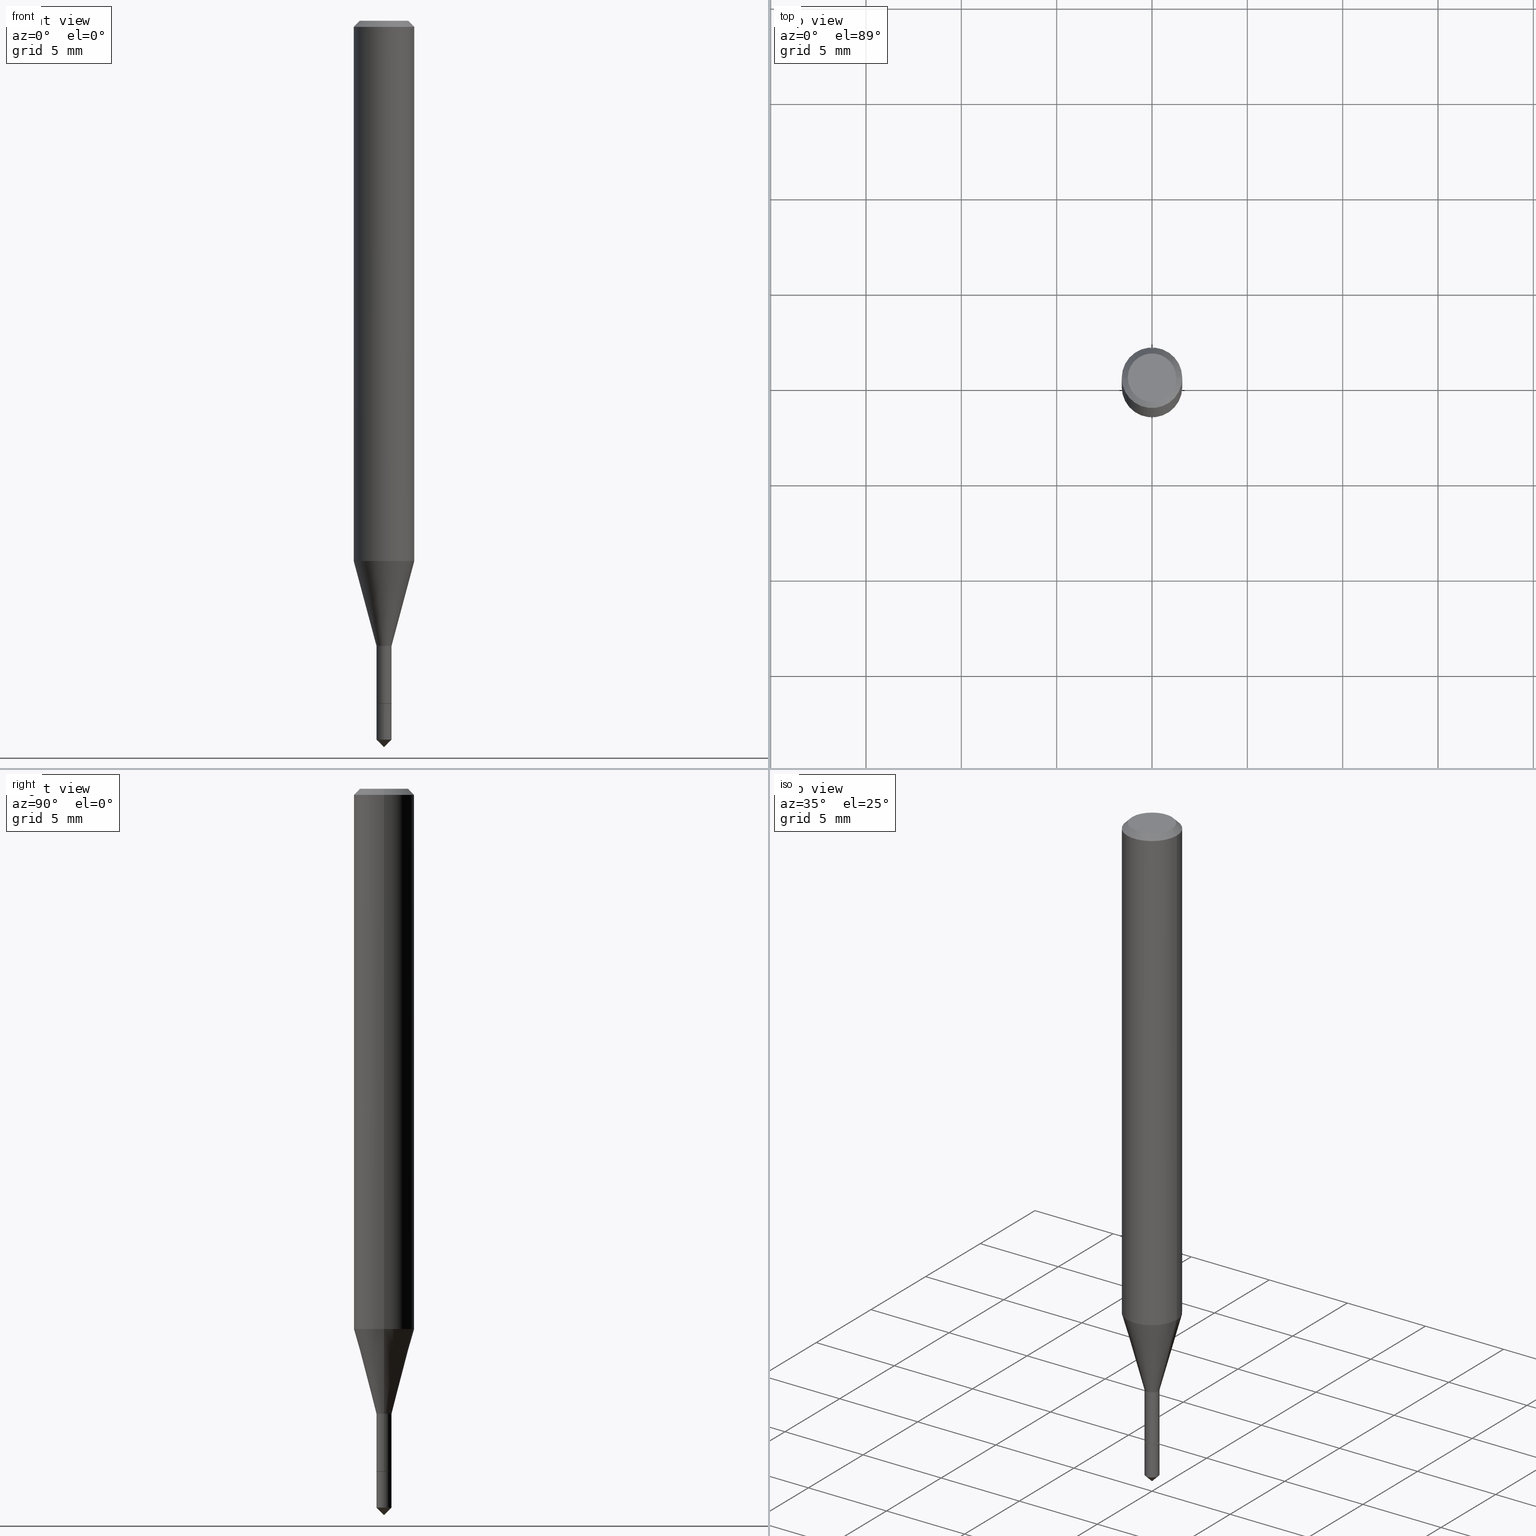
[diagram: canonical four-view strip — front | top / right | iso, engineering-drawing reading convention]
A machine part, canonical four-view strip (front | top / right | iso — engineering-drawing reading convention). The complete STEP part file that produces these views, byte-faithful:
ISO-10303-21;
HEADER;
FILE_DESCRIPTION (( 'STEP AP203' ),
    '1' );
FILE_NAME ('07005.STEP',
    '2024-04-23T19:13:34',
    ( '' ),
    ( '' ),
    'SwSTEP 2.0',
    'SolidWorks 2023',
    '' );
FILE_SCHEMA (( 'CONFIG_CONTROL_DESIGN' ));
ENDSEC;

DATA;
#1 = CARTESIAN_POINT ( 'NONE',  ( 3.056836007731441853E-31, -4.364351673553962300E-17, -0.01250000000000008570 ) ) ;
#2 = ORIENTED_EDGE ( 'NONE', *, *, #175, .T. ) ;
#3 = VERTEX_POINT ( 'NONE', #405 ) ;
#4 = ORIENTED_EDGE ( 'NONE', *, *, #226, .F. ) ;
#5 = DIRECTION ( 'NONE',  ( -2.435672027996482102E-29, 3.505510882807285658E-15, 1.000000000000000000 ) ) ;
#6 = ORIENTED_EDGE ( 'NONE', *, *, #333, .T. ) ;
#7 = CARTESIAN_POINT ( 'NONE',  ( 3.156122041262538513E-29, -4.506105815910965661E-15, -1.290600000000000414 ) ) ;
#8 = CC_DESIGN_DATE_AND_TIME_ASSIGNMENT ( #279, #53, ( #65 ) ) ;
#9 = LINE ( 'NONE', #351, #266 ) ;
#10 =( GEOMETRIC_REPRESENTATION_CONTEXT ( 3 ) GLOBAL_UNCERTAINTY_ASSIGNED_CONTEXT ( ( #263 ) ) GLOBAL_UNIT_ASSIGNED_CONTEXT ( ( #46, #58, #404 ) ) REPRESENTATION_CONTEXT ( 'NONE', 'WORKASPACE' ) );
#11 = DIRECTION ( 'NONE',  ( -0.2588190451025212391, 5.211531920934549464E-15, 0.9659258262890679791 ) ) ;
#12 = EDGE_CURVE ( 'NONE', #455, #324, #420, .T. ) ;
#13 = DIRECTION ( 'NONE',  ( -2.445468806185136597E-29, 3.491481338843145583E-15, 1.000000000000000000 ) ) ;
#14 = ADVANCED_FACE ( 'NONE', ( #286 ), #139, .T. ) ;
#15 = CARTESIAN_POINT ( 'NONE',  ( 0.06250000000000006939, -4.364351673553921624E-16, 3.047610484872463374E-30 ) ) ;
#16 = AXIS2_PLACEMENT_3D ( 'NONE', #174, #284, #397 ) ;
#17 = LOCAL_TIME ( 15, 13, 34.00000000000000000, #245 ) ;
#18 = CLOSED_SHELL ( 'NONE', ( #14, #434, #184, #309, #170 ) ) ;
#19 = DIRECTION ( 'NONE',  ( -0.7071067811865452413, 2.468850131082233000E-15, -0.7071067811865497932 ) ) ;
#20 = EDGE_CURVE ( 'NONE', #109, #227, #363, .T. ) ;
#21 = DATE_AND_TIME ( #362, #367 ) ;
#22 = FACE_OUTER_BOUND ( 'NONE', #179, .T. ) ;
#23 = APPROVAL_STATUS ( 'not_yet_approved' ) ;
#24 = CARTESIAN_POINT ( 'NONE',  ( 0.000000000000000000, 0.000000000000000000, 0.000000000000000000 ) ) ;
#25 = ORIENTED_EDGE ( 'NONE', *, *, #341, .F. ) ;
#26 = CYLINDRICAL_SURFACE ( 'NONE', #395, 0.06250000000000006939 ) ;
#27 = ORIENTED_EDGE ( 'NONE', *, *, #148, .T. ) ;
#28 = ADVANCED_FACE ( 'NONE', ( #22 ), #373, .T. ) ;
#29 = DIRECTION ( 'NONE',  ( -2.445468806185136597E-29, 3.491481338843145583E-15, 1.000000000000000000 ) ) ;
#30 = FACE_OUTER_BOUND ( 'NONE', #117, .T. ) ;
#31 = DIRECTION ( 'NONE',  ( -6.982962677686266711E-15, -1.000000000000000000, 3.552713678800496985E-15 ) ) ;
#32 = CARTESIAN_POINT ( 'NONE',  ( -1.089342177718694794E-16, -0.01560000000000518784, -1.484400000000000386 ) ) ;
#33 = ORIENTED_EDGE ( 'NONE', *, *, #365, .F. ) ;
#34 = CARTESIAN_POINT ( 'NONE',  ( 0.000000000000000000, 0.000000000000000000, 0.000000000000000000 ) ) ;
#35 = EDGE_CURVE ( 'NONE', #227, #158, #320, .T. ) ;
#36 = DIRECTION ( 'NONE',  ( 1.000000000000000000, -6.982962677686290376E-15, 0.000000000000000000 ) ) ;
#37 = ORIENTED_EDGE ( 'NONE', *, *, #35, .T. ) ;
#38 = ORIENTED_EDGE ( 'NONE', *, *, #189, .F. ) ;
#39 = EDGE_LOOP ( 'NONE', ( #215, #37, #417, #294 ) ) ;
#40 = CARTESIAN_POINT ( 'NONE',  ( 3.448111016721043790E-29, -4.922988687768837279E-15, -1.410000000000000586 ) ) ;
#41 = AXIS2_PLACEMENT_3D ( 'NONE', #110, #415, #188 ) ;
#42 = CIRCLE ( 'NONE', #173, 0.01510000000000000231 ) ;
#43 = DIRECTION ( 'NONE',  ( 2.445468806185136597E-29, -3.491481338843145583E-15, -1.000000000000000000 ) ) ;
#44 = CARTESIAN_POINT ( 'NONE',  ( -0.06250000000000015266, -3.450891514374587205E-15, -1.115566817125019927 ) ) ;
#45 = ADVANCED_FACE ( 'NONE', ( #52 ), #26, .T. ) ;
#46 =( CONVERSION_BASED_UNIT ( 'INCH', #275 ) LENGTH_UNIT ( ) NAMED_UNIT ( #218 ) );
#47 = ORIENTED_EDGE ( 'NONE', *, *, #211, .F. ) ;
#48 = PERSON_AND_ORGANIZATION_ROLE ( 'creator' ) ;
#49 = LOCAL_TIME ( 15, 13, 34.00000000000000000, #89 ) ;
#50 = PERSON_AND_ORGANIZATION_ROLE ( 'design_owner' ) ;
#51 = ADVANCED_FACE ( 'NONE', ( #280 ), #208, .T. ) ;
#52 = FACE_OUTER_BOUND ( 'NONE', #269, .T. ) ;
#53 = DATE_TIME_ROLE ( 'classification_date' ) ;
#54 = DIRECTION ( 'NONE',  ( -2.445468806185136597E-29, 3.491481338843145583E-15, 1.000000000000000000 ) ) ;
#55 = APPROVAL_STATUS ( 'not_yet_approved' ) ;
#56 = LINE ( 'NONE', #291, #192 ) ;
#57 = CC_DESIGN_SECURITY_CLASSIFICATION ( #65, ( #411 ) ) ;
#58 =( NAMED_UNIT ( * ) PLANE_ANGLE_UNIT ( ) SI_UNIT ( $, .RADIAN. ) );
#59 = CARTESIAN_POINT ( 'NONE',  ( -0.01559999999999998888, 1.108446667785755500E-16, -7.673538740797647234E-31 ) ) ;
#60 = APPROVAL ( #138, 'UNSPECIFIED' ) ;
#61 = CARTESIAN_POINT ( 'NONE',  ( 3.446888282317950988E-29, -4.921242947099414987E-15, -1.409500000000000419 ) ) ;
#62 = ORIENTED_EDGE ( 'NONE', *, *, #446, .F. ) ;
#63 = DIRECTION ( 'NONE',  ( -2.445468806185136597E-29, 3.491481338843145583E-15, 1.000000000000000000 ) ) ;
#64 = CIRCLE ( 'NONE', #165, 0.01510000000000000231 ) ;
#65 = SECURITY_CLASSIFICATION ( '', '', #180 ) ;
#66 = VERTEX_POINT ( 'NONE', #441 ) ;
#67 = DIRECTION ( 'NONE',  ( 1.000000000000000000, -6.982962677686265922E-15, 4.875957971899673662E-29 ) ) ;
#68 = EDGE_CURVE ( 'NONE', #455, #340, #401, .T. ) ;
#69 = DESIGN_CONTEXT ( 'detailed design', #462, 'design' ) ;
#70 = CARTESIAN_POINT ( 'NONE',  ( 3.448111016721043790E-29, -4.922988687768837279E-15, -1.410000000000000586 ) ) ;
#71 = ORIENTED_EDGE ( 'NONE', *, *, #315, .T. ) ;
#72 = ORIENTED_EDGE ( 'NONE', *, *, #189, .T. ) ;
#73 = DIRECTION ( 'NONE',  ( 1.000000000000000000, -6.982962677686248567E-15, 0.000000000000000000 ) ) ;
#74 = ORIENTED_EDGE ( 'NONE', *, *, #35, .F. ) ;
#75 = VECTOR ( 'NONE', #369, 39.37007874015748854 ) ;
#76 = AXIS2_PLACEMENT_3D ( 'NONE', #80, #13, #235 ) ;
#77 = DIRECTION ( 'NONE',  ( 2.445468806185136597E-29, -3.491481338843145583E-15, -1.000000000000000000 ) ) ;
#78 = ORIENTED_EDGE ( 'NONE', *, *, #88, .F. ) ;
#79 = DIRECTION ( 'NONE',  ( 1.000000000000000000, -6.982962677686286432E-15, 0.000000000000000000 ) ) ;
#80 = CARTESIAN_POINT ( 'NONE',  ( 2.728083852494474973E-29, -3.894980724224650610E-15, -1.115566817125019927 ) ) ;
#81 = AXIS2_PLACEMENT_3D ( 'NONE', #34, #338, #190 ) ;
#82 = APPROVAL_PERSON_ORGANIZATION ( #283, #458, #319 ) ;
#83 = DIRECTION ( 'NONE',  ( -2.445468806185136597E-29, 3.491481338843145583E-15, 1.000000000000000000 ) ) ;
#84 = ORIENTED_EDGE ( 'NONE', *, *, #454, .T. ) ;
#85 = DIRECTION ( 'NONE',  ( -1.000000000000000000, 6.982962677686266711E-15, 0.000000000000000000 ) ) ;
#86 = VERTEX_POINT ( 'NONE', #97 ) ;
#87 = DIRECTION ( 'NONE',  ( -2.445468806185136597E-29, 3.491481338843145583E-15, 1.000000000000000000 ) ) ;
#88 = EDGE_CURVE ( 'NONE', #217, #396, #56, .T. ) ;
#89 = COORDINATED_UNIVERSAL_TIME_OFFSET ( 5, 0, .BEHIND. ) ;
#90 = CONICAL_SURFACE ( 'NONE', #119, 0.01510000000000000231, 0.7853981633969937537 ) ;
#91 = PLANE ( 'NONE',  #328 ) ;
#92 = AXIS2_PLACEMENT_3D ( 'NONE', #7, #83, #385 ) ;
#93 = DIRECTION ( 'NONE',  ( -1.000000000000000000, 6.982962677686265922E-15, -4.876176775795935793E-29 ) ) ;
#94 = PERSON_AND_ORGANIZATION ( #334, #305 ) ;
#95 = ADVANCED_FACE ( 'NONE', ( #183 ), #91, .F. ) ;
#96 = MANIFOLD_SOLID_BREP ( 'Body-Move/Copy2[1]', #18 ) ;
#97 = CARTESIAN_POINT ( 'NONE',  ( -1.089342177718712543E-16, -0.01560000000000492243, -1.410000000000000586 ) ) ;
#98 = PRODUCT ( '07005', '07005', '', ( #172 ) ) ;
#99 = EDGE_CURVE ( 'NONE', #468, #455, #476, .T. ) ;
#100 = CARTESIAN_POINT ( 'NONE',  ( 3.681377211915869878E-29, -5.218703010232054902E-15, -1.500000000000000444 ) ) ;
#101 = ORIENTED_EDGE ( 'NONE', *, *, #321, .F. ) ;
#102 = CIRCLE ( 'NONE', #41, 0.06250000000000000000 ) ;
#103 = EDGE_CURVE ( 'NONE', #352, #463, #200, .T. ) ;
#104 = CLOSED_SHELL ( 'NONE', ( #357, #141, #205, #407, #51, #161, #28, #45, #326, #114, #95, #156 ) ) ;
#105 = PERSON_AND_ORGANIZATION ( #334, #305 ) ;
#106 = CARTESIAN_POINT ( 'NONE',  ( 0.01559999999999998367, -4.615040033682871428E-15, -1.290600000000000414 ) ) ;
#107 = ORIENTED_EDGE ( 'NONE', *, *, #252, .T. ) ;
#108 = DIRECTION ( 'NONE',  ( -2.445468806185136597E-29, 3.491481338843145583E-15, 1.000000000000000000 ) ) ;
#109 = VERTEX_POINT ( 'NONE', #249 ) ;
#110 = CARTESIAN_POINT ( 'NONE',  ( 3.056836007731441853E-31, -4.364351673553962300E-17, -0.01250000000000008570 ) ) ;
#111 = CIRCLE ( 'NONE', #349, 0.01559999999999999928 ) ;
#112 = CARTESIAN_POINT ( 'NONE',  ( 0.01559999999999998888, -1.089342177719056807E-16, 7.606835770241653944E-31 ) ) ;
#113 = DIRECTION ( 'NONE',  ( -2.435672027996482102E-29, 3.505510882807285264E-15, 1.000000000000000000 ) ) ;
#114 = ADVANCED_FACE ( 'NONE', ( #219 ), #327, .F. ) ;
#115 = ORIENTED_EDGE ( 'NONE', *, *, #132, .F. ) ;
#116 = CARTESIAN_POINT ( 'NONE',  ( 0.000000000000000000, 0.000000000000000000, 0.000000000000000000 ) ) ;
#117 = EDGE_LOOP ( 'NONE', ( #307, #107 ) ) ;
#118 = EDGE_CURVE ( 'NONE', #432, #463, #472, .T. ) ;
#119 = AXIS2_PLACEMENT_3D ( 'NONE', #224, #297, #73 ) ;
#120 = EDGE_LOOP ( 'NONE', ( #489, #389, #124, #4 ) ) ;
#121 = CC_DESIGN_APPROVAL ( #292, ( #411 ) ) ;
#122 = FACE_OUTER_BOUND ( 'NONE', #195, .T. ) ;
#123 = CARTESIAN_POINT ( 'NONE',  ( 3.653508041994724135E-29, -5.258266324210929277E-15, -1.500000000000000444 ) ) ;
#124 = ORIENTED_EDGE ( 'NONE', *, *, #416, .F. ) ;
#125 = EDGE_LOOP ( 'NONE', ( #331, #448, #47 ) ) ;
#126 = EDGE_CURVE ( 'NONE', #109, #336, #64, .T. ) ;
#127 = DIRECTION ( 'NONE',  ( -2.445468806185136597E-29, 3.491481338843145583E-15, 1.000000000000000000 ) ) ;
#128 = AXIS2_PLACEMENT_3D ( 'NONE', #461, #43, #85 ) ;
#129 = DIRECTION ( 'NONE',  ( 1.000000000000000000, -6.982962677686248567E-15, 0.000000000000000000 ) ) ;
#130 = ORIENTED_EDGE ( 'NONE', *, *, #454, .F. ) ;
#131 = LINE ( 'NONE', #231, #450 ) ;
#132 = EDGE_CURVE ( 'NONE', #178, #227, #213, .T. ) ;
#133 = CALENDAR_DATE ( 2024, 23, 4 ) ;
#134 = CARTESIAN_POINT ( 'NONE',  ( 0.000000000000000000, 0.000000000000000000, 0.000000000000000000 ) ) ;
#135 = COORDINATED_UNIVERSAL_TIME_OFFSET ( 5, 0, .BEHIND. ) ;
#136 = AXIS2_PLACEMENT_3D ( 'NONE', #449, #228, #31 ) ;
#137 = DIRECTION ( 'NONE',  ( 0.2588190451025212391, 1.565188264969622362E-15, 0.9659258262890679791 ) ) ;
#138 = APPROVAL_STATUS ( 'not_yet_approved' ) ;
#139 = CYLINDRICAL_SURFACE ( 'NONE', #409, 0.01559999999999999928 ) ;
#140 = APPLICATION_PROTOCOL_DEFINITION ( 'international standard', 'config_control_design', 1994, #290 ) ;
#141 = ADVANCED_FACE ( 'NONE', ( #264 ), #281, .T. ) ;
#142 = CARTESIAN_POINT ( 'NONE',  ( 3.629325015603981193E-29, -5.183798697449698462E-15, -1.484400000000000386 ) ) ;
#143 = PRODUCT_DEFINITION_SHAPE ( 'NONE', 'NONE',  #237 ) ;
#144 = APPLICATION_PROTOCOL_DEFINITION ( 'international standard', 'config_control_design', 1994, #462 ) ;
#145 = DIRECTION ( 'NONE',  ( 1.000000000000000000, -6.982962677686266711E-15, 4.876176775795935793E-29 ) ) ;
#146 = CIRCLE ( 'NONE', #443, 0.01559999999999999928 ) ;
#147 = CARTESIAN_POINT ( 'NONE',  ( -0.04999999999999999584, 3.709698922520826725E-16, -1.592040838894077649E-18 ) ) ;
#148 = EDGE_CURVE ( 'NONE', #66, #396, #222, .T. ) ;
#149 = DIRECTION ( 'NONE',  ( 1.000000000000000000, -6.982962677686266711E-15, 0.000000000000000000 ) ) ;
#150 = CARTESIAN_POINT ( 'NONE',  ( -1.089342177718712543E-16, -0.01560000000000492243, -1.410000000000000586 ) ) ;
#151 = VECTOR ( 'NONE', #5, 39.37007874015748143 ) ;
#152 = CC_DESIGN_APPROVAL ( #458, ( #65 ) ) ;
#153 = CARTESIAN_POINT ( 'NONE',  ( -0.01559999999999999235, -4.602829714726614675E-15, -1.409500000000000419 ) ) ;
#154 = EDGE_LOOP ( 'NONE', ( #364, #271, #477, #25 ) ) ;
#155 = CYLINDRICAL_SURFACE ( 'NONE', #81, 0.01559999999999998888 ) ;
#156 = ADVANCED_FACE ( 'NONE', ( #225 ), #90, .T. ) ;
#157 = DIRECTION ( 'NONE',  ( -2.435672027996482102E-29, 3.505510882807285264E-15, 1.000000000000000000 ) ) ;
#158 = VERTEX_POINT ( 'NONE', #293 ) ;
#159 = FACE_OUTER_BOUND ( 'NONE', #276, .T. ) ;
#160 = ORIENTED_EDGE ( 'NONE', *, *, #88, .T. ) ;
#161 = ADVANCED_FACE ( 'NONE', ( #262 ), #155, .T. ) ;
#162 = DIRECTION ( 'NONE',  ( -2.445468806185136597E-29, 3.491481338843145583E-15, 1.000000000000000000 ) ) ;
#163 = EDGE_LOOP ( 'NONE', ( #414, #427, #347, #325 ) ) ;
#164 =( LENGTH_UNIT ( ) NAMED_UNIT ( * ) SI_UNIT ( $, .METRE. ) );
#165 = AXIS2_PLACEMENT_3D ( 'NONE', #251, #436, #399 ) ;
#166 = VECTOR ( 'NONE', #459, 39.37007874015748854 ) ;
#167 = DIRECTION ( 'NONE',  ( -6.982962677686265922E-15, -1.000000000000000000, 0.000000000000000000 ) ) ;
#168 = PERSON_AND_ORGANIZATION_ROLE ( 'creator' ) ;
#169 = CARTESIAN_POINT ( 'NONE',  ( -1.436494430713738511E-28, -3.043229776768017851E-14, -1.410000000000000586 ) ) ;
#170 = ADVANCED_FACE ( 'NONE', ( #30 ), #377, .F. ) ;
#171 = AXIS2_PLACEMENT_3D ( 'NONE', #70, #113, #412 ) ;
#172 = MECHANICAL_CONTEXT ( 'NONE', #290, 'mechanical' ) ;
#173 = AXIS2_PLACEMENT_3D ( 'NONE', #308, #127, #425 ) ;
#174 = CARTESIAN_POINT ( 'NONE',  ( 3.156122041262538513E-29, -4.506105815910965661E-15, -1.290600000000000414 ) ) ;
#175 = EDGE_CURVE ( 'NONE', #158, #432, #473, .T. ) ;
#176 = SHAPE_DEFINITION_REPRESENTATION ( #143, #232 ) ;
#177 = DIRECTION ( 'NONE',  ( -2.435672027996482102E-29, 3.505510882807285264E-15, 1.000000000000000000 ) ) ;
#178 = VERTEX_POINT ( 'NONE', #419 ) ;
#179 = EDGE_LOOP ( 'NONE', ( #410, #2, #197, #253 ) ) ;
#180 = SECURITY_CLASSIFICATION_LEVEL ( 'unclassified' ) ;
#181 = CARTESIAN_POINT ( 'NONE',  ( 2.728083852494474973E-29, -3.894980724224650610E-15, -1.115566817125019927 ) ) ;
#182 = EDGE_LOOP ( 'NONE', ( #33, #216 ) ) ;
#183 = FACE_OUTER_BOUND ( 'NONE', #182, .T. ) ;
#184 = ADVANCED_FACE ( 'NONE', ( #295 ), #488, .T. ) ;
#185 = AXIS2_PLACEMENT_3D ( 'NONE', #447, #487, #36 ) ;
#186 = EDGE_LOOP ( 'NONE', ( #84, #380 ) ) ;
#187 = DIRECTION ( 'NONE',  ( -6.982962677686265922E-15, -1.000000000000000000, 0.000000000000000000 ) ) ;
#188 = DIRECTION ( 'NONE',  ( 1.000000000000000000, -6.982962677686266711E-15, 0.000000000000000000 ) ) ;
#189 = EDGE_CURVE ( 'NONE', #396, #66, #102, .T. ) ;
#190 = DIRECTION ( 'NONE',  ( 1.000000000000000000, -6.982962677686266711E-15, 4.876176775795935232E-29 ) ) ;
#191 = AXIS2_PLACEMENT_3D ( 'NONE', #142, #177, #406 ) ;
#192 = VECTOR ( 'NONE', #19, 39.37007874015748143 ) ;
#193 = AXIS2_PLACEMENT_3D ( 'NONE', #457, #268, #79 ) ;
#194 = ORIENTED_EDGE ( 'NONE', *, *, #383, .T. ) ;
#195 = EDGE_LOOP ( 'NONE', ( #300, #130, #160, #72 ) ) ;
#196 = CARTESIAN_POINT ( 'NONE',  ( 3.893286209682126177E-47, -5.558580879666067980E-33, -1.592040838891559689E-18 ) ) ;
#197 = ORIENTED_EDGE ( 'NONE', *, *, #118, .T. ) ;
#198 = CARTESIAN_POINT ( 'NONE',  ( 3.448111016721044350E-29, -4.922988687768838068E-15, -1.410000000000000808 ) ) ;
#199 = DIRECTION ( 'NONE',  ( -2.435672027996482102E-29, 3.505510882807285264E-15, 1.000000000000000000 ) ) ;
#200 = CIRCLE ( 'NONE', #418, 0.06250000000000013878 ) ;
#201 = CARTESIAN_POINT ( 'NONE',  ( 3.156122041262538513E-29, -4.506105815910965661E-15, -1.290600000000000414 ) ) ;
#202 = DIRECTION ( 'NONE',  ( 1.000000000000000000, -6.982962677686290376E-15, 0.000000000000000000 ) ) ;
#203 = CARTESIAN_POINT ( 'NONE',  ( 3.893286209682126177E-47, -5.558580879666067980E-33, -1.592040838891559689E-18 ) ) ;
#204 = ORIENTED_EDGE ( 'NONE', *, *, #438, .T. ) ;
#205 = ADVANCED_FACE ( 'NONE', ( #256 ), #332, .T. ) ;
#206 = PERSON_AND_ORGANIZATION ( #334, #305 ) ;
#207 = APPROVAL_DATE_TIME ( #469, #60 ) ;
#208 = CYLINDRICAL_SURFACE ( 'NONE', #311, 0.01559999999999998888 ) ;
#209 = COORDINATED_UNIVERSAL_TIME_OFFSET ( 5, 0, .BEHIND. ) ;
#210 = DIRECTION ( 'NONE',  ( -2.445468806185136877E-29, 3.491481338843145188E-15, 1.000000000000000000 ) ) ;
#211 = EDGE_CURVE ( 'NONE', #324, #455, #146, .T. ) ;
#212 = EDGE_LOOP ( 'NONE', ( #261, #204, #361 ) ) ;
#213 = CIRCLE ( 'NONE', #433, 0.01559999999999999235 ) ;
#214 = CALENDAR_DATE ( 2024, 23, 4 ) ;
#215 = ORIENTED_EDGE ( 'NONE', *, *, #132, .T. ) ;
#216 = ORIENTED_EDGE ( 'NONE', *, *, #126, .F. ) ;
#217 = VERTEX_POINT ( 'NONE', #147 ) ;
#218 = DIMENSIONAL_EXPONENTS ( 1.000000000000000000, 0.000000000000000000, 0.000000000000000000, 0.000000000000000000, 0.000000000000000000, 0.000000000000000000, 0.000000000000000000 ) ;
#219 = FACE_OUTER_BOUND ( 'NONE', #186, .T. ) ;
#220 = DIRECTION ( 'NONE',  ( 1.000000000000000000, -6.982962677686265922E-15, 4.876176775795935793E-29 ) ) ;
#221 = CARTESIAN_POINT ( 'NONE',  ( 3.448111016721043790E-29, -4.922988687768837279E-15, -1.410000000000000586 ) ) ;
#222 = CIRCLE ( 'NONE', #381, 0.06250000000000000000 ) ;
#223 = AXIS2_PLACEMENT_3D ( 'NONE', #312, #157, #428 ) ;
#224 = CARTESIAN_POINT ( 'NONE',  ( 3.448111016721044350E-29, -4.922988687768838068E-15, -1.410000000000000808 ) ) ;
#225 = FACE_OUTER_BOUND ( 'NONE', #154, .T. ) ;
#226 = EDGE_CURVE ( 'NONE', #324, #86, #254, .T. ) ;
#227 = VERTEX_POINT ( 'NONE', #153 ) ;
#228 = DIRECTION ( 'NONE',  ( -2.435672027996482102E-29, 3.505510882807285264E-15, 1.000000000000000000 ) ) ;
#229 = CIRCLE ( 'NONE', #337, 0.04999999999999999584 ) ;
#230 = CARTESIAN_POINT ( 'NONE',  ( 3.448111016721043790E-29, -4.922988687768837279E-15, -1.410000000000000586 ) ) ;
#231 = CARTESIAN_POINT ( 'NONE',  ( 0.06250000000000000000, -4.724246415962603826E-16, -0.01250000000000008570 ) ) ;
#232 = ADVANCED_BREP_SHAPE_REPRESENTATION ( '07005', ( #96, #426, #298 ), #10 ) ;
#233 = AXIS2_PLACEMENT_3D ( 'NONE', #221, #375, #187 ) ;
#234 = AXIS2_PLACEMENT_3D ( 'NONE', #201, #270, #202 ) ;
#235 = DIRECTION ( 'NONE',  ( 1.000000000000000000, -6.982962677686270655E-15, 0.000000000000000000 ) ) ;
#236 = DIRECTION ( 'NONE',  ( 1.000000000000000000, -6.982962677686265922E-15, 4.875957971899673662E-29 ) ) ;
#237 = PRODUCT_DEFINITION ( 'UNKNOWN', '', #411, #69 ) ;
#238 = CARTESIAN_POINT ( 'NONE',  ( 0.06250000000000015266, -4.331415891580043857E-15, -1.115566817125019927 ) ) ;
#239 = AXIS2_PLACEMENT_3D ( 'NONE', #116, #108, #330 ) ;
#240 = CIRCLE ( 'NONE', #76, 0.06250000000000013878 ) ;
#241 = PERSON_AND_ORGANIZATION ( #334, #305 ) ;
#242 = CARTESIAN_POINT ( 'NONE',  ( 3.448111016721043790E-29, -4.922988687768837279E-15, -1.410000000000000586 ) ) ;
#243 = PERSON_AND_ORGANIZATION ( #334, #305 ) ;
#244 = CARTESIAN_POINT ( 'NONE',  ( 1.108446667786100873E-16, 0.01559999999999507440, -1.410000000000000586 ) ) ;
#245 = COORDINATED_UNIVERSAL_TIME_OFFSET ( 5, 0, .BEHIND. ) ;
#246 = DIRECTION ( 'NONE',  ( -2.435672027996482102E-29, 3.505510882807285264E-15, 1.000000000000000000 ) ) ;
#247 = VECTOR ( 'NONE', #137, 39.37007874015748854 ) ;
#248 = APPROVAL_PERSON_ORGANIZATION ( #241, #60, #437 ) ;
#249 = CARTESIAN_POINT ( 'NONE',  ( -0.01510000000000000231, -4.813047507494950934E-15, -1.410000000000000808 ) ) ;
#250 = APPROVAL_DATE_TIME ( #289, #292 ) ;
#251 = CARTESIAN_POINT ( 'NONE',  ( 3.448111016721044350E-29, -4.922988687768838068E-15, -1.410000000000000808 ) ) ;
#252 = EDGE_CURVE ( 'NONE', #340, #86, #317, .T. ) ;
#253 = ORIENTED_EDGE ( 'NONE', *, *, #103, .F. ) ;
#254 = LINE ( 'NONE', #150, #151 ) ;
#255 = ORIENTED_EDGE ( 'NONE', *, *, #103, .T. ) ;
#256 = FACE_OUTER_BOUND ( 'NONE', #163, .T. ) ;
#257 = LOCAL_TIME ( 15, 13, 34.00000000000000000, #135 ) ;
#258 = ORIENTED_EDGE ( 'NONE', *, *, #365, .T. ) ;
#259 = DIRECTION ( 'NONE',  ( -2.445468806185136877E-29, 3.491481338843145188E-15, 1.000000000000000000 ) ) ;
#260 = PRODUCT_RELATED_PRODUCT_CATEGORY ( 'detail', '', ( #98 ) ) ;
#261 = ORIENTED_EDGE ( 'NONE', *, *, #99, .F. ) ;
#262 = FACE_OUTER_BOUND ( 'NONE', #378, .T. ) ;
#263 = UNCERTAINTY_MEASURE_WITH_UNIT (LENGTH_MEASURE( 1.000000000000000082E-05 ), #46, 'distance_accuracy_value', 'NONE');
#264 = FACE_OUTER_BOUND ( 'NONE', #343, .T. ) ;
#265 = AXIS2_PLACEMENT_3D ( 'NONE', #486, #77, #453 ) ;
#266 = VECTOR ( 'NONE', #303, 39.37007874015748143 ) ;
#267 = EDGE_CURVE ( 'NONE', #3, #217, #229, .T. ) ;
#268 = DIRECTION ( 'NONE',  ( -2.445468806185136597E-29, 3.491481338843145583E-15, 1.000000000000000000 ) ) ;
#269 = EDGE_LOOP ( 'NONE', ( #101, #255, #194, #38 ) ) ;
#270 = DIRECTION ( 'NONE',  ( -2.445468806185136597E-29, 3.491481338843145583E-15, 1.000000000000000000 ) ) ;
#271 = ORIENTED_EDGE ( 'NONE', *, *, #126, .T. ) ;
#272 = DIRECTION ( 'NONE',  ( 0.7071067811865452413, -7.319954787623248157E-15, -0.7071067811865497932 ) ) ;
#273 = VECTOR ( 'NONE', #379, 39.37007874015748143 ) ;
#274 = CONICAL_SURFACE ( 'NONE', #223, 39.37007874015752407, 0.7853981633974488341 ) ;
#275 = LENGTH_MEASURE_WITH_UNIT ( LENGTH_MEASURE( 0.02539999999999999897 ), #164 );
#276 = EDGE_LOOP ( 'NONE', ( #393, #313, #391, #282 ) ) ;
#277 = DIRECTION ( 'NONE',  ( -2.445468806185136877E-29, 3.491481338843145188E-15, 1.000000000000000000 ) ) ;
#278 = ORIENTED_EDGE ( 'NONE', *, *, #267, .F. ) ;
#279 = DATE_AND_TIME ( #133, #257 ) ;
#280 = FACE_OUTER_BOUND ( 'NONE', #39, .T. ) ;
#281 = CONICAL_SURFACE ( 'NONE', #265, 0.06250000000000000000, 0.7853981633974450594 ) ;
#282 = ORIENTED_EDGE ( 'NONE', *, *, #118, .F. ) ;
#283 = PERSON_AND_ORGANIZATION ( #334, #305 ) ;
#284 = DIRECTION ( 'NONE',  ( -2.445468806185136597E-29, 3.491481338843145583E-15, 1.000000000000000000 ) ) ;
#285 = CARTESIAN_POINT ( 'NONE',  ( 0.000000000000000000, 0.000000000000000000, 0.000000000000000000 ) ) ;
#286 = FACE_OUTER_BOUND ( 'NONE', #120, .T. ) ;
#287 = CARTESIAN_POINT ( 'NONE',  ( -0.01510000000000000231, -4.815696734669062924E-15, -1.410000000000000808 ) ) ;
#288 = AXIS2_PLACEMENT_3D ( 'NONE', #480, #445, #93 ) ;
#289 = DATE_AND_TIME ( #356, #49 ) ;
#290 = APPLICATION_CONTEXT ( 'configuration controlled 3d designs of mechanical parts and assemblies' ) ;
#291 = CARTESIAN_POINT ( 'NONE',  ( -0.06250000000000000000, 3.927916506198520587E-16, -0.01250000000000008570 ) ) ;
#292 = APPROVAL ( #55, 'UNSPECIFIED' ) ;
#293 = CARTESIAN_POINT ( 'NONE',  ( -0.01559999999999998367, -4.602829714726614675E-15, -1.290600000000000414 ) ) ;
#294 = ORIENTED_EDGE ( 'NONE', *, *, #315, .F. ) ;
#295 = FACE_OUTER_BOUND ( 'NONE', #212, .T. ) ;
#296 = CONICAL_SURFACE ( 'NONE', #128, 0.06250000000000000000, 0.7853981633974450594 ) ;
#297 = DIRECTION ( 'NONE',  ( -2.445468806185136597E-29, 3.491481338843145583E-15, 1.000000000000000000 ) ) ;
#298 = AXIS2_PLACEMENT_3D ( 'NONE', #285, #435, #479 ) ;
#299 = CARTESIAN_POINT ( 'NONE',  ( -0.06250000000000006939, 4.440892098500631092E-16, -3.074334431409319267E-30 ) ) ;
#300 = ORIENTED_EDGE ( 'NONE', *, *, #333, .F. ) ;
#301 = DIRECTION ( 'NONE',  ( 2.435672027996481262E-29, -3.505510882807285658E-15, -1.000000000000000000 ) ) ;
#302 = CC_DESIGN_PERSON_AND_ORGANIZATION_ASSIGNMENT ( #398, #440, ( #411 ) ) ;
#303 = DIRECTION ( 'NONE',  ( -4.937700262164550409E-15, -0.7071067811865454633, 0.7071067811865495711 ) ) ;
#304 = ORIENTED_EDGE ( 'NONE', *, *, #226, .T. ) ;
#305 = ORGANIZATION ( 'UNSPECIFIED', 'UNSPECIFIED', '' ) ;
#306 = CARTESIAN_POINT ( 'NONE',  ( 0.01510000000000000231, -5.028431424201900828E-15, -1.410000000000000808 ) ) ;
#307 = ORIENTED_EDGE ( 'NONE', *, *, #416, .T. ) ;
#308 = CARTESIAN_POINT ( 'NONE',  ( 3.448111016721044350E-29, -4.922988687768838068E-15, -1.410000000000000808 ) ) ;
#309 = ADVANCED_FACE ( 'NONE', ( #342 ), #382, .T. ) ;
#310 = CARTESIAN_POINT ( 'NONE',  ( -0.01559999999999998367, -4.395261149132390407E-15, -1.290600000000000414 ) ) ;
#311 = AXIS2_PLACEMENT_3D ( 'NONE', #134, #29, #431 ) ;
#312 = CARTESIAN_POINT ( 'NONE',  ( -9.222527802817983362E-28, 1.327737548133802843E-13, 37.87007874015748143 ) ) ;
#313 = ORIENTED_EDGE ( 'NONE', *, *, #402, .T. ) ;
#314 = CALENDAR_DATE ( 2024, 23, 4 ) ;
#315 = EDGE_CURVE ( 'NONE', #178, #432, #451, .T. ) ;
#316 = DIRECTION ( 'NONE',  ( 1.000000000000000000, -6.982962677686270655E-15, 0.000000000000000000 ) ) ;
#317 = CIRCLE ( 'NONE', #171, 0.01559999999999999928 ) ;
#318 = VECTOR ( 'NONE', #277, 39.37007874015748143 ) ;
#319 = APPROVAL_ROLE ( '' ) ;
#320 = LINE ( 'NONE', #59, #464 ) ;
#321 = EDGE_CURVE ( 'NONE', #352, #396, #413, .T. ) ;
#322 = DATE_AND_TIME ( #214, #17 ) ;
#323 = DIRECTION ( 'NONE',  ( 5.024295867788064756E-15, 0.7071067811865503483, 0.7071067811865446862 ) ) ;
#324 = VERTEX_POINT ( 'NONE', #32 ) ;
#325 = ORIENTED_EDGE ( 'NONE', *, *, #383, .F. ) ;
#326 = ADVANCED_FACE ( 'NONE', ( #122 ), #296, .T. ) ;
#327 = PLANE ( 'NONE',  #288 ) ;
#328 = AXIS2_PLACEMENT_3D ( 'NONE', #169, #439, #220 ) ;
#329 = CONICAL_SURFACE ( 'NONE', #92, 0.01559999999999998367, 0.2617993877991499629 ) ;
#330 = DIRECTION ( 'NONE',  ( 1.000000000000000000, -6.982962677686266711E-15, 4.876176775795935793E-29 ) ) ;
#331 = ORIENTED_EDGE ( 'NONE', *, *, #438, .F. ) ;
#332 = CYLINDRICAL_SURFACE ( 'NONE', #239, 0.06250000000000006939 ) ;
#333 = EDGE_CURVE ( 'NONE', #3, #66, #131, .T. ) ;
#334 = PERSON ( 'UNSPECIFIED', 'UNSPECIFIED', 'UNSPECIFIED', ('UNSPECIFIED'), ('UNSPECIFIED'), ('UNSPECIFIED') ) ;
#335 = CARTESIAN_POINT ( 'NONE',  ( 3.629325015603981193E-29, -5.183798697449698462E-15, -1.484400000000000386 ) ) ;
#336 = VERTEX_POINT ( 'NONE', #466 ) ;
#337 = AXIS2_PLACEMENT_3D ( 'NONE', #196, #408, #67 ) ;
#338 = DIRECTION ( 'NONE',  ( -2.445468806185136597E-29, 3.491481338843145583E-15, 1.000000000000000000 ) ) ;
#339 = CC_DESIGN_APPROVAL ( #60, ( #237 ) ) ;
#340 = VERTEX_POINT ( 'NONE', #394 ) ;
#341 = EDGE_CURVE ( 'NONE', #227, #178, #482, .T. ) ;
#342 = FACE_OUTER_BOUND ( 'NONE', #483, .T. ) ;
#343 = EDGE_LOOP ( 'NONE', ( #278, #6, #27, #78 ) ) ;
#344 = EDGE_LOOP ( 'NONE', ( #258, #460, #115, #62 ) ) ;
#345 = LINE ( 'NONE', #310, #355 ) ;
#346 = EDGE_CURVE ( 'NONE', #463, #352, #240, .T. ) ;
#347 = ORIENTED_EDGE ( 'NONE', *, *, #148, .F. ) ;
#348 = CARTESIAN_POINT ( 'NONE',  ( 0.01559999999999998367, -4.615040033682871428E-15, -1.290600000000000414 ) ) ;
#349 = AXIS2_PLACEMENT_3D ( 'NONE', #40, #199, #167 ) ;
#350 = CC_DESIGN_PERSON_AND_ORGANIZATION_ASSIGNMENT ( #105, #48, ( #411 ) ) ;
#351 = CARTESIAN_POINT ( 'NONE',  ( 3.653508041994724695E-29, -5.258266324210929277E-15, -1.500000000000000444 ) ) ;
#352 = VERTEX_POINT ( 'NONE', #44 ) ;
#353 = LINE ( 'NONE', #15, #318 ) ;
#354 = VECTOR ( 'NONE', #323, 39.37007874015748143 ) ;
#355 = VECTOR ( 'NONE', #11, 39.37007874015748854 ) ;
#356 = CALENDAR_DATE ( 2024, 23, 4 ) ;
#357 = ADVANCED_FACE ( 'NONE', ( #386 ), #474, .T. ) ;
#358 = APPROVAL_ROLE ( '' ) ;
#359 = DIRECTION ( 'NONE',  ( -6.982962677686265922E-15, -1.000000000000000000, 0.000000000000000000 ) ) ;
#360 = ORIENTED_EDGE ( 'NONE', *, *, #12, .T. ) ;
#361 = ORIENTED_EDGE ( 'NONE', *, *, #12, .F. ) ;
#362 = CALENDAR_DATE ( 2024, 23, 4 ) ;
#363 = LINE ( 'NONE', #287, #75 ) ;
#364 = ORIENTED_EDGE ( 'NONE', *, *, #20, .F. ) ;
#365 = EDGE_CURVE ( 'NONE', #336, #109, #42, .T. ) ;
#366 = AXIS2_PLACEMENT_3D ( 'NONE', #230, #301, #456 ) ;
#367 = LOCAL_TIME ( 15, 13, 34.00000000000000000, #209 ) ;
#368 = PERSON_AND_ORGANIZATION ( #334, #305 ) ;
#369 = DIRECTION ( 'NONE',  ( -0.7071067811862260521, 7.493145998869191379E-15, 0.7071067811868688713 ) ) ;
#370 = ORIENTED_EDGE ( 'NONE', *, *, #68, .F. ) ;
#371 = DIRECTION ( 'NONE',  ( -2.435672027996482102E-29, 3.505510882807285658E-15, 1.000000000000000000 ) ) ;
#372 = DIRECTION ( 'NONE',  ( 1.000000000000000000, -6.982962677686286432E-15, 0.000000000000000000 ) ) ;
#373 = CONICAL_SURFACE ( 'NONE', #16, 0.01559999999999998367, 0.2617993877991499629 ) ;
#374 = AXIS2_PLACEMENT_3D ( 'NONE', #203, #87, #236 ) ;
#375 = DIRECTION ( 'NONE',  ( -2.435672027996482102E-29, 3.505510882807285264E-15, 1.000000000000000000 ) ) ;
#376 = CC_DESIGN_DATE_AND_TIME_ASSIGNMENT ( #322, #400, ( #237 ) ) ;
#377 = PLANE ( 'NONE',  #366 ) ;
#378 = EDGE_LOOP ( 'NONE', ( #74, #442, #71, #452 ) ) ;
#379 = DIRECTION ( 'NONE',  ( -2.445468806185136877E-29, 3.491481338843145188E-15, 1.000000000000000000 ) ) ;
#380 = ORIENTED_EDGE ( 'NONE', *, *, #267, .T. ) ;
#381 = AXIS2_PLACEMENT_3D ( 'NONE', #1, #63, #149 ) ;
#382 = CYLINDRICAL_SURFACE ( 'NONE', #233, 0.01559999999999999928 ) ;
#383 = EDGE_CURVE ( 'NONE', #463, #66, #353, .T. ) ;
#384 = DIRECTION ( 'NONE',  ( -2.435672027996482102E-29, 3.505510882807285264E-15, 1.000000000000000000 ) ) ;
#385 = DIRECTION ( 'NONE',  ( 1.000000000000000000, -6.982962677686290376E-15, 0.000000000000000000 ) ) ;
#386 = FACE_OUTER_BOUND ( 'NONE', #344, .T. ) ;
#387 = AXIS2_PLACEMENT_3D ( 'NONE', #198, #162, #129 ) ;
#388 = FACE_OUTER_BOUND ( 'NONE', #125, .T. ) ;
#389 = ORIENTED_EDGE ( 'NONE', *, *, #68, .T. ) ;
#390 = CARTESIAN_POINT ( 'NONE',  ( 1.108446667786119115E-16, 0.01559999999999481940, -1.484400000000000386 ) ) ;
#391 = ORIENTED_EDGE ( 'NONE', *, *, #346, .F. ) ;
#392 = CC_DESIGN_PERSON_AND_ORGANIZATION_ASSIGNMENT ( #94, #168, ( #237 ) ) ;
#393 = ORIENTED_EDGE ( 'NONE', *, *, #422, .T. ) ;
#394 = CARTESIAN_POINT ( 'NONE',  ( 1.108446667786119238E-16, 0.01559999999999507787, -1.410000000000000586 ) ) ;
#395 = AXIS2_PLACEMENT_3D ( 'NONE', #24, #470, #145 ) ;
#396 = VERTEX_POINT ( 'NONE', #423 ) ;
#397 = DIRECTION ( 'NONE',  ( 1.000000000000000000, -6.982962677686290376E-15, 0.000000000000000000 ) ) ;
#398 = PERSON_AND_ORGANIZATION ( #334, #305 ) ;
#399 = DIRECTION ( 'NONE',  ( 1.000000000000000000, -6.982962677686248567E-15, 0.000000000000000000 ) ) ;
#400 = DATE_TIME_ROLE ( 'creation_date' ) ;
#401 = LINE ( 'NONE', #244, #481 ) ;
#402 = EDGE_CURVE ( 'NONE', #158, #352, #345, .T. ) ;
#403 = CIRCLE ( 'NONE', #374, 0.04999999999999999584 ) ;
#404 =( NAMED_UNIT ( * ) SI_UNIT ( $, .STERADIAN. ) SOLID_ANGLE_UNIT ( ) );
#405 = CARTESIAN_POINT ( 'NONE',  ( 0.04999999999999999584, -4.077247707424184705E-16, -1.592040838888913461E-18 ) ) ;
#406 = DIRECTION ( 'NONE',  ( -6.982962677686265922E-15, -1.000000000000000000, 0.000000000000000000 ) ) ;
#407 = ADVANCED_FACE ( 'NONE', ( #159 ), #329, .T. ) ;
#408 = DIRECTION ( 'NONE',  ( -2.445468806185136597E-29, 3.491481338843145583E-15, 1.000000000000000000 ) ) ;
#409 = AXIS2_PLACEMENT_3D ( 'NONE', #242, #246, #359 ) ;
#410 = ORIENTED_EDGE ( 'NONE', *, *, #402, .F. ) ;
#411 = PRODUCT_DEFINITION_FORMATION_WITH_SPECIFIED_SOURCE ( 'ANY', '', #98, .NOT_KNOWN. ) ;
#412 = DIRECTION ( 'NONE',  ( -6.982962677686265922E-15, -1.000000000000000000, 0.000000000000000000 ) ) ;
#413 = LINE ( 'NONE', #299, #273 ) ;
#414 = ORIENTED_EDGE ( 'NONE', *, *, #346, .T. ) ;
#415 = DIRECTION ( 'NONE',  ( -2.445468806185136597E-29, 3.491481338843145583E-15, 1.000000000000000000 ) ) ;
#416 = EDGE_CURVE ( 'NONE', #86, #340, #111, .T. ) ;
#417 = ORIENTED_EDGE ( 'NONE', *, *, #422, .F. ) ;
#418 = AXIS2_PLACEMENT_3D ( 'NONE', #181, #478, #316 ) ;
#419 = CARTESIAN_POINT ( 'NONE',  ( 0.01559999999999999235, -5.030177164871321543E-15, -1.409500000000000419 ) ) ;
#420 = CIRCLE ( 'NONE', #191, 0.01559999999999999928 ) ;
#421 = LINE ( 'NONE', #306, #166 ) ;
#422 = EDGE_CURVE ( 'NONE', #432, #158, #465, .T. ) ;
#423 = CARTESIAN_POINT ( 'NONE',  ( -0.06250000000000000000, -1.525222910630031483E-15, -0.01250000000000008570 ) ) ;
#424 = VECTOR ( 'NONE', #259, 39.37007874015748143 ) ;
#425 = DIRECTION ( 'NONE',  ( 1.000000000000000000, -6.982962677686248567E-15, 0.000000000000000000 ) ) ;
#426 = MANIFOLD_SOLID_BREP ( 'Body-Move/Copy2[2]', #104 ) ;
#427 = ORIENTED_EDGE ( 'NONE', *, *, #321, .T. ) ;
#428 = DIRECTION ( 'NONE',  ( -6.982962677686266711E-15, -1.000000000000000000, 3.552713678800496985E-15 ) ) ;
#429 = CC_DESIGN_PERSON_AND_ORGANIZATION_ASSIGNMENT ( #243, #50, ( #98 ) ) ;
#430 = COORDINATED_UNIVERSAL_TIME_OFFSET ( 5, 0, .BEHIND. ) ;
#431 = DIRECTION ( 'NONE',  ( 1.000000000000000000, -6.982962677686266711E-15, 4.876176775795935232E-29 ) ) ;
#432 = VERTEX_POINT ( 'NONE', #348 ) ;
#433 = AXIS2_PLACEMENT_3D ( 'NONE', #61, #54, #372 ) ;
#434 = ADVANCED_FACE ( 'NONE', ( #388 ), #274, .T. ) ;
#435 = DIRECTION ( 'NONE',  ( 0.000000000000000000, 0.000000000000000000, 1.000000000000000000 ) ) ;
#436 = DIRECTION ( 'NONE',  ( -2.445468806185136597E-29, 3.491481338843145583E-15, 1.000000000000000000 ) ) ;
#437 = APPROVAL_ROLE ( '' ) ;
#438 = EDGE_CURVE ( 'NONE', #468, #324, #9, .T. ) ;
#439 = DIRECTION ( 'NONE',  ( -2.438088387897960049E-29, 3.491481338843145188E-15, 1.000000000000000000 ) ) ;
#440 = PERSON_AND_ORGANIZATION_ROLE ( 'design_supplier' ) ;
#441 = CARTESIAN_POINT ( 'NONE',  ( 0.06250000000000000000, -4.800786840909313294E-16, -0.01250000000000008570 ) ) ;
#442 = ORIENTED_EDGE ( 'NONE', *, *, #341, .T. ) ;
#443 = AXIS2_PLACEMENT_3D ( 'NONE', #335, #384, #484 ) ;
#444 = APPROVAL_PERSON_ORGANIZATION ( #368, #292, #358 ) ;
#445 = DIRECTION ( 'NONE',  ( 2.438088387897960049E-29, -3.491481338843145188E-15, -1.000000000000000000 ) ) ;
#446 = EDGE_CURVE ( 'NONE', #336, #178, #421, .T. ) ;
#447 = CARTESIAN_POINT ( 'NONE',  ( 3.156122041262538513E-29, -4.506105815910965661E-15, -1.290600000000000414 ) ) ;
#448 = ORIENTED_EDGE ( 'NONE', *, *, #99, .T. ) ;
#449 = CARTESIAN_POINT ( 'NONE',  ( -9.222527802817983362E-28, 1.327737548133802843E-13, 37.87007874015748143 ) ) ;
#450 = VECTOR ( 'NONE', #272, 39.37007874015748143 ) ;
#451 = LINE ( 'NONE', #112, #424 ) ;
#452 = ORIENTED_EDGE ( 'NONE', *, *, #175, .F. ) ;
#453 = DIRECTION ( 'NONE',  ( -1.000000000000000000, 6.982962677686266711E-15, 0.000000000000000000 ) ) ;
#454 = EDGE_CURVE ( 'NONE', #217, #3, #403, .T. ) ;
#455 = VERTEX_POINT ( 'NONE', #390 ) ;
#456 = DIRECTION ( 'NONE',  ( 6.982962677686265922E-15, 1.000000000000000000, -3.505510882807285658E-15 ) ) ;
#457 = CARTESIAN_POINT ( 'NONE',  ( 3.446888282317950988E-29, -4.921242947099414987E-15, -1.409500000000000419 ) ) ;
#458 = APPROVAL ( #23, 'UNSPECIFIED' ) ;
#459 = DIRECTION ( 'NONE',  ( 0.7071067811862260521, -2.468850131078890202E-15, 0.7071067811868688713 ) ) ;
#460 = ORIENTED_EDGE ( 'NONE', *, *, #20, .T. ) ;
#461 = CARTESIAN_POINT ( 'NONE',  ( 3.056836007731441853E-31, -4.364351673553962300E-17, -0.01250000000000008570 ) ) ;
#462 = APPLICATION_CONTEXT ( 'configuration controlled 3d designs of mechanical parts and assemblies' ) ;
#463 = VERTEX_POINT ( 'NONE', #238 ) ;
#464 = VECTOR ( 'NONE', #210, 39.37007874015748143 ) ;
#465 = CIRCLE ( 'NONE', #234, 0.01559999999999998367 ) ;
#466 = CARTESIAN_POINT ( 'NONE',  ( 0.01510000000000000231, -5.028431424201900828E-15, -1.410000000000000808 ) ) ;
#467 = CC_DESIGN_PERSON_AND_ORGANIZATION_ASSIGNMENT ( #206, #471, ( #65 ) ) ;
#468 = VERTEX_POINT ( 'NONE', #123 ) ;
#469 = DATE_AND_TIME ( #314, #490 ) ;
#470 = DIRECTION ( 'NONE',  ( -2.445468806185136597E-29, 3.491481338843145583E-15, 1.000000000000000000 ) ) ;
#471 = PERSON_AND_ORGANIZATION_ROLE ( 'classification_officer' ) ;
#472 = LINE ( 'NONE', #106, #247 ) ;
#473 = CIRCLE ( 'NONE', #185, 0.01559999999999998367 ) ;
#474 = CONICAL_SURFACE ( 'NONE', #387, 0.01510000000000000231, 0.7853981633969937537 ) ;
#475 = APPROVAL_DATE_TIME ( #21, #458 ) ;
#476 = LINE ( 'NONE', #100, #354 ) ;
#477 = ORIENTED_EDGE ( 'NONE', *, *, #446, .T. ) ;
#478 = DIRECTION ( 'NONE',  ( -2.445468806185136597E-29, 3.491481338843145583E-15, 1.000000000000000000 ) ) ;
#479 = DIRECTION ( 'NONE',  ( 1.000000000000000000, 0.000000000000000000, 0.000000000000000000 ) ) ;
#480 = CARTESIAN_POINT ( 'NONE',  ( 1.946643104841063088E-47, -2.779290439833033990E-33, -7.960204194457798443E-19 ) ) ;
#481 = VECTOR ( 'NONE', #371, 39.37007874015748143 ) ;
#482 = CIRCLE ( 'NONE', #193, 0.01559999999999999235 ) ;
#483 = EDGE_LOOP ( 'NONE', ( #370, #360, #304, #485 ) ) ;
#484 = DIRECTION ( 'NONE',  ( -6.982962677686265922E-15, -1.000000000000000000, 0.000000000000000000 ) ) ;
#485 = ORIENTED_EDGE ( 'NONE', *, *, #252, .F. ) ;
#486 = CARTESIAN_POINT ( 'NONE',  ( 3.056836007731441853E-31, -4.364351673553962300E-17, -0.01250000000000008570 ) ) ;
#487 = DIRECTION ( 'NONE',  ( -2.445468806185136597E-29, 3.491481338843145583E-15, 1.000000000000000000 ) ) ;
#488 = CONICAL_SURFACE ( 'NONE', #136, 39.37007874015752407, 0.7853981633974488341 ) ;
#489 = ORIENTED_EDGE ( 'NONE', *, *, #211, .T. ) ;
#490 = LOCAL_TIME ( 15, 13, 34.00000000000000000, #430 ) ;
ENDSEC;
END-ISO-10303-21;
